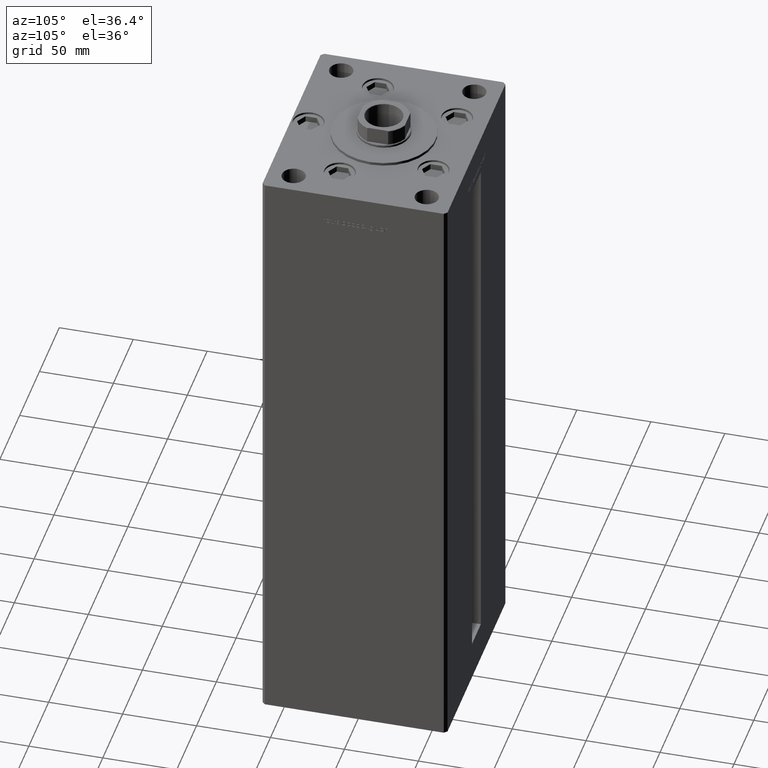
[diagram: clean part render]
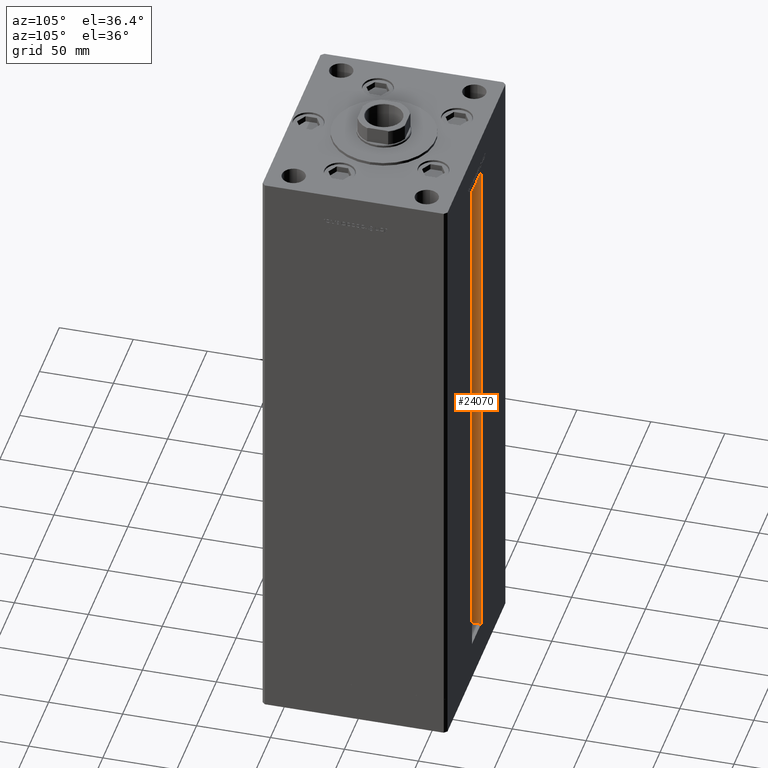
[diagram: same view with one face highlighted and labeled with its STEP entity id]
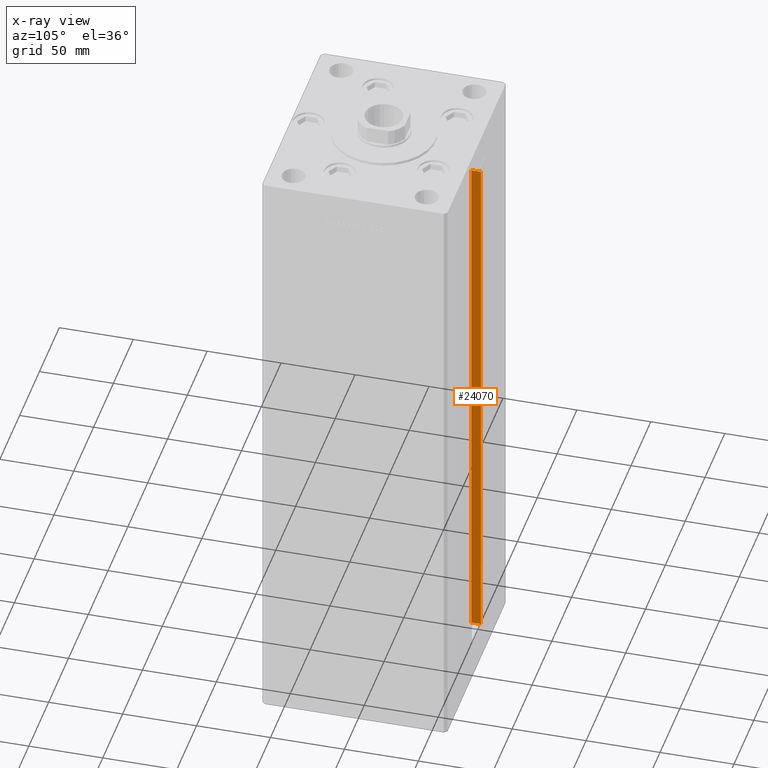
[diagram: x-ray of the same camera — body ghosted, the highlighted face saturated]
A machine part, auxiliary view. The second image highlights one B-rep face of the part: STEP entity #24070.
The next image is the same camera in x-ray: the body ghosted, the highlighted face saturated — about 0% of this face is hidden behind the body in this view.
In plain terms, the highlighted planar face has unit normal (-1, 0, 0).
Its self-contained STEP definition (entity closure, byte-faithful):
#1890 = EDGE_CURVE ( 'NONE', #47027, #13728, #49929, .T. ) ;
#7035 = ORIENTED_EDGE ( 'NONE', *, *, #8228, .F. ) ;
#7850 = CARTESIAN_POINT ( 'NONE',  ( -11.25000000000000178, 62.49999999999999289, 367.0000000000000000 ) ) ;
#8066 = VERTEX_POINT ( 'NONE', #7850 ) ;
#8211 = EDGE_CURVE ( 'NONE', #47027, #8066, #20982, .T. ) ;
#8228 = EDGE_CURVE ( 'NONE', #13728, #48432, #13344, .T. ) ;
#9409 = CARTESIAN_POINT ( 'NONE',  ( -11.25000000000000178, 62.49999999999999289, 0.000000000000000000 ) ) ;
#9694 = CARTESIAN_POINT ( 'NONE',  ( -11.25000000000000178, 55.99999999999999289, 0.000000000000000000 ) ) ;
#10022 = VECTOR ( 'NONE', #29646, 1000.000000000000000 ) ;
#12692 = VECTOR ( 'NONE', #36550, 1000.000000000000000 ) ;
#12699 = ORIENTED_EDGE ( 'NONE', *, *, #1890, .F. ) ;
#13344 = LINE ( 'NONE', #41545, #19414 ) ;
#13728 = VERTEX_POINT ( 'NONE', #16619 ) ;
#16619 = CARTESIAN_POINT ( 'NONE',  ( -11.25000000000000178, 55.99999999999999289, 0.000000000000000000 ) ) ;
#16801 = DIRECTION ( 'NONE',  ( -1.000000000000000000, 0.000000000000000000, 0.000000000000000000 ) ) ;
#17227 = CARTESIAN_POINT ( 'NONE',  ( -11.25000000000000178, 55.99999999999999289, 367.0000000000000000 ) ) ;
#19414 = VECTOR ( 'NONE', #20202, 1000.000000000000000 ) ;
#20202 = DIRECTION ( 'NONE',  ( -0.000000000000000000, -0.000000000000000000, 1.000000000000000000 ) ) ;
#20904 = ORIENTED_EDGE ( 'NONE', *, *, #8211, .T. ) ;
#20982 = LINE ( 'NONE', #9409, #12692 ) ;
#24070 = ADVANCED_FACE ( 'NONE', ( #33655 ), #49213, .F. ) ;
#25427 = AXIS2_PLACEMENT_3D ( 'NONE', #9694, #16801, #37605 ) ;
#29646 = DIRECTION ( 'NONE',  ( -0.000000000000000000, -1.000000000000000000, -0.000000000000000000 ) ) ;
#29906 = CARTESIAN_POINT ( 'NONE',  ( -11.25000000000000178, 55.99999999999999289, 0.000000000000000000 ) ) ;
#33382 = LINE ( 'NONE', #49193, #43256 ) ;
#33655 = FACE_OUTER_BOUND ( 'NONE', #35978, .T. ) ;
#35545 = EDGE_CURVE ( 'NONE', #48432, #8066, #33382, .T. ) ;
#35978 = EDGE_LOOP ( 'NONE', ( #7035, #12699, #20904, #43547 ) ) ;
#36550 = DIRECTION ( 'NONE',  ( -0.000000000000000000, -0.000000000000000000, 1.000000000000000000 ) ) ;
#37605 = DIRECTION ( 'NONE',  ( 0.000000000000000000, 0.000000000000000000, 1.000000000000000000 ) ) ;
#40398 = CARTESIAN_POINT ( 'NONE',  ( -11.25000000000000178, 62.49999999999999289, 0.000000000000000000 ) ) ;
#41545 = CARTESIAN_POINT ( 'NONE',  ( -11.25000000000000178, 55.99999999999999289, 0.000000000000000000 ) ) ;
#43256 = VECTOR ( 'NONE', #48930, 1000.000000000000000 ) ;
#43547 = ORIENTED_EDGE ( 'NONE', *, *, #35545, .F. ) ;
#47027 = VERTEX_POINT ( 'NONE', #40398 ) ;
#48432 = VERTEX_POINT ( 'NONE', #17227 ) ;
#48930 = DIRECTION ( 'NONE',  ( 0.000000000000000000, 1.000000000000000000, 0.000000000000000000 ) ) ;
#49193 = CARTESIAN_POINT ( 'NONE',  ( -11.25000000000000178, 0.000000000000000000, 367.0000000000000000 ) ) ;
#49213 = PLANE ( 'NONE',  #25427 ) ;
#49929 = LINE ( 'NONE', #29906, #10022 ) ;